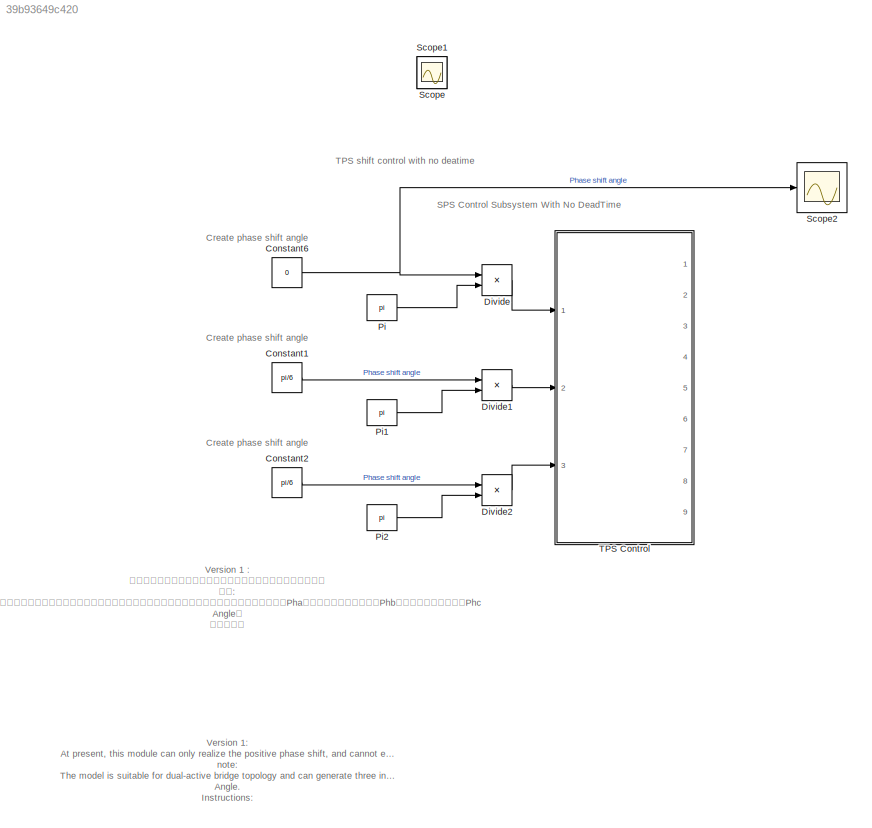
MODEL slx_39b93649c420
KIND model
CONFIG AbsTol = auto
CONFIG EnableMultiTasking = off
CONFIG FixedStep = auto
CONFIG MaxStep = 1e-9
CONFIG MinStep = auto
CONFIG RelTol = 1e-3
CONFIG SampleTimeConstraint = Unconstrained
CONFIG Solver = VariableStepAuto
CONFIG SolverName = VariableStepAuto
CONFIG StartTime = 0.0
CONFIG StopTime = 5/100000
BLOCK [Constant] Constant1
  Value = pi/6
BLOCK [Constant] Constant2
  Value = pi/6
BLOCK [Constant] Constant6
  Value = 0
BLOCK [Product] Divide
  InputSameDT = off
  Inputs = */
  OutDataTypeStr = Inherit: Inherit via internal rule
  Ports = [2, 1]
  RndMeth = Floor
  SaturateOnIntegerOverflow = off
BLOCK [Product] Divide1
  InputSameDT = off
  Inputs = */
  OutDataTypeStr = Inherit: Inherit via internal rule
  Ports = [2, 1]
  RndMeth = Floor
  SaturateOnIntegerOverflow = off
BLOCK [Product] Divide2
  InputSameDT = off
  Inputs = */
  OutDataTypeStr = Inherit: Inherit via internal rule
  Ports = [2, 1]
  RndMeth = Floor
  SaturateOnIntegerOverflow = off
BLOCK [Constant] Pi
  Value = pi
BLOCK [Constant] Pi1
  Value = pi
BLOCK [Constant] Pi2
  Value = pi
BLOCK [Scope] Scope
  IOType = viewer
  NumInputPorts = 1
  Ports = []
  ScopeSpecificationString = Simulink.scopes.TimeScopeBlockCfg('CurrentConfiguration', extmgr.ConfigurationSet(extmgr.Configuration('Core','General UI',true),extmgr.Configuration('Core','Source UI',true),extmgr.Configuration('Sources','WiredSimulink',true,'DataLoggingVariableName','ScopeData2'),extmgr.Configuration('Visuals','Time Domain',true,'SerializedDisplays',{struct('MinYLimReal','-1.00000','MaxYLimReal','1.00000','YLab...<+1394ch>
BLOCK [Scope] Scope1
  IOType = viewer
  NumInputPorts = 1
  Ports = []
  ScopeSpecificationString = Simulink.scopes.TimeScopeBlockCfg('CurrentConfiguration', extmgr.ConfigurationSet(extmgr.Configuration('Core','General UI',true),extmgr.Configuration('Core','Source UI',true),extmgr.Configuration('Sources','WiredSimulink',true,'DataLoggingVariableName','ScopeData3'),extmgr.Configuration('Visuals','Time Domain',true,'SerializedDisplays',{struct('MinYLimReal','-1.00000','MaxYLimReal','1.00000','YLab...<+1394ch>
BLOCK [Scope] Scope2
  NumInputPorts = 1
  Ports = [1]
  ScopeSpecificationString = Simulink.scopes.TimeScopeBlockCfg('CurrentConfiguration', extmgr.ConfigurationSet(extmgr.Configuration('Core','General UI',true),extmgr.Configuration('Core','Source UI',true),extmgr.Configuration('Sources','WiredSimulink',true,'DataLoggingVariableName','ScopeData1'),extmgr.Configuration('Visuals','Time Domain',true,'SerializedDisplays',{struct('MinYLimReal','50.00000','MaxYLimReal','70.00000','YLa...<+1506ch>
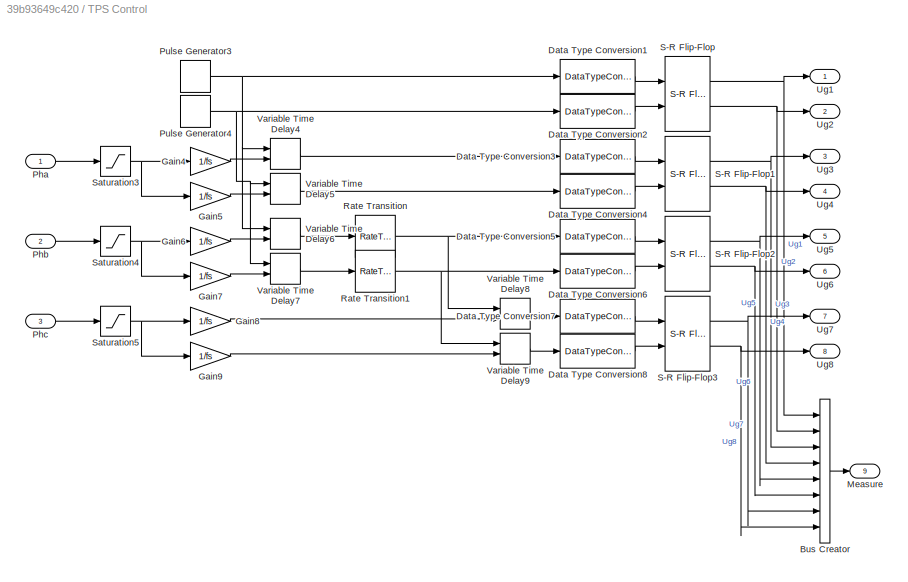
BLOCK [SubSystem] TPS Control
  Ports = [3, 9]
  RequestExecContextInheritance = off
  ShowPortLabels = FromPortBlockName
  Variant = off
BLOCK [BusCreator] TPS Control/Bus Creator
  DisplayOption = bar
  InheritFromInputs = on
  Inputs = 8
  Ports = [8, 1]
BLOCK [DataTypeConversion] TPS Control/Data Type Conversion1
  RndMeth = Floor
  SaturateOnIntegerOverflow = off
BLOCK [DataTypeConversion] TPS Control/Data Type Conversion2
  RndMeth = Floor
  SaturateOnIntegerOverflow = off
BLOCK [DataTypeConversion] TPS Control/Data Type Conversion3
  RndMeth = Floor
  SaturateOnIntegerOverflow = off
BLOCK [DataTypeConversion] TPS Control/Data Type Conversion4
  RndMeth = Floor
  SaturateOnIntegerOverflow = off
BLOCK [DataTypeConversion] TPS Control/Data Type Conversion5
  RndMeth = Floor
  SaturateOnIntegerOverflow = off
BLOCK [DataTypeConversion] TPS Control/Data Type Conversion6
  RndMeth = Floor
  SaturateOnIntegerOverflow = off
BLOCK [DataTypeConversion] TPS Control/Data Type Conversion7
  RndMeth = Floor
  SaturateOnIntegerOverflow = off
BLOCK [DataTypeConversion] TPS Control/Data Type Conversion8
  RndMeth = Floor
  SaturateOnIntegerOverflow = off
BLOCK [Gain] TPS Control/Gain4
  Gain = 1/fs
  OutDataTypeStr = Inherit: Inherit via internal rule
  ParamDataTypeStr = Inherit: Inherit via internal rule
  SaturateOnIntegerOverflow = off
BLOCK [Gain] TPS Control/Gain5
  Gain = 1/fs
  OutDataTypeStr = Inherit: Inherit via internal rule
  ParamDataTypeStr = Inherit: Inherit via internal rule
  SaturateOnIntegerOverflow = off
BLOCK [Gain] TPS Control/Gain6
  Gain = 1/fs
  OutDataTypeStr = Inherit: Inherit via internal rule
  ParamDataTypeStr = Inherit: Inherit via internal rule
  SaturateOnIntegerOverflow = off
BLOCK [Gain] TPS Control/Gain7
  Gain = 1/fs
  OutDataTypeStr = Inherit: Inherit via internal rule
  ParamDataTypeStr = Inherit: Inherit via internal rule
  SaturateOnIntegerOverflow = off
BLOCK [Gain] TPS Control/Gain8
  Gain = 1/fs
  OutDataTypeStr = Inherit: Inherit via internal rule
  ParamDataTypeStr = Inherit: Inherit via internal rule
  SaturateOnIntegerOverflow = off
BLOCK [Gain] TPS Control/Gain9
  Gain = 1/fs
  OutDataTypeStr = Inherit: Inherit via internal rule
  ParamDataTypeStr = Inherit: Inherit via internal rule
  SaturateOnIntegerOverflow = off
BLOCK [Outport] TPS Control/Measure
  IconDisplay = Port number
  Port = 9
BLOCK [Inport] TPS Control/Pha
  IconDisplay = Port number
BLOCK [Inport] TPS Control/Phb
  IconDisplay = Port number
  Port = 2
BLOCK [Inport] TPS Control/Phc
  IconDisplay = Port number
  Port = 3
BLOCK [DiscretePulseGenerator] TPS Control/Pulse Generator3
  Period = 1/(1*fs)
  Ports = [0, 1]
  PulseType = Time based
  PulseWidth = 50
  VectorParams1D = off
BLOCK [DiscretePulseGenerator] TPS Control/Pulse Generator4
  Period = 1/(1*fs)
  PhaseDelay = 0.5/fs
  Ports = [0, 1]
  PulseType = Time based
  PulseWidth = 50
  VectorParams1D = off
BLOCK [RateTransition] TPS Control/Rate Transition
BLOCK [RateTransition] TPS Control/Rate Transition1
BLOCK [Reference] TPS Control/S-R Flip-Flop  REF=simulink_extras/Flip Flops/S-R
Flip-Flop
  Ports = [2, 2]
  SourceBlock = simulink_extras/Flip Flops/S-R\nFlip-Flop
  SourceType = SRFlipFlop
BLOCK [Reference] TPS Control/S-R Flip-Flop1  REF=simulink_extras/Flip Flops/S-R
Flip-Flop
  Ports = [2, 2]
  SourceBlock = simulink_extras/Flip Flops/S-R\nFlip-Flop
  SourceType = SRFlipFlop
BLOCK [Reference] TPS Control/S-R Flip-Flop2  REF=simulink_extras/Flip Flops/S-R
Flip-Flop
  Ports = [2, 2]
  SourceBlock = simulink_extras/Flip Flops/S-R\nFlip-Flop
  SourceType = SRFlipFlop
BLOCK [Reference] TPS Control/S-R Flip-Flop3  REF=simulink_extras/Flip Flops/S-R
Flip-Flop
  Ports = [2, 2]
  SourceBlock = simulink_extras/Flip Flops/S-R\nFlip-Flop
  SourceType = SRFlipFlop
BLOCK [Saturate] TPS Control/Saturation3
  InputPortMap = u0
  LowerLimit = 0
  Ports = [1, 1]
BLOCK [Saturate] TPS Control/Saturation4
  InputPortMap = u0
  LowerLimit = 0
  Ports = [1, 1]
BLOCK [Saturate] TPS Control/Saturation5
  InputPortMap = u0
  LowerLimit = 0
  Ports = [1, 1]
  UpperLimit = 1
BLOCK [Outport] TPS Control/Ug1
  IconDisplay = Port number
BLOCK [Outport] TPS Control/Ug2
  IconDisplay = Port number
  Port = 2
BLOCK [Outport] TPS Control/Ug3
  IconDisplay = Port number
  Port = 3
BLOCK [Outport] TPS Control/Ug4
  IconDisplay = Port number
  Port = 4
BLOCK [Outport] TPS Control/Ug5
  IconDisplay = Port number
  Port = 5
BLOCK [Outport] TPS Control/Ug6
  IconDisplay = Port number
  Port = 6
BLOCK [Outport] TPS Control/Ug7
  IconDisplay = Port number
  Port = 7
BLOCK [Outport] TPS Control/Ug8
  IconDisplay = Port number
  Port = 8
BLOCK [VariableTransportDelay] TPS Control/Variable Time Delay4
  MaximumDelay = 10
  Ports = [2, 1]
  ZeroDelay = on
BLOCK [VariableTransportDelay] TPS Control/Variable Time Delay5
  MaximumDelay = 10
  Ports = [2, 1]
  ZeroDelay = on
BLOCK [VariableTransportDelay] TPS Control/Variable Time Delay6
  MaximumDelay = 10
  Ports = [2, 1]
  ZeroDelay = on
BLOCK [VariableTransportDelay] TPS Control/Variable Time Delay7
  MaximumDelay = 10
  Ports = [2, 1]
  ZeroDelay = on
BLOCK [VariableTransportDelay] TPS Control/Variable Time Delay8
  MaximumDelay = 10
  Ports = [2, 1]
  ZeroDelay = on
BLOCK [VariableTransportDelay] TPS Control/Variable Time Delay9
  MaximumDelay = 10
  Ports = [2, 1]
  ZeroDelay = on
ANNOTATION (root): Version 1 : 目前该模块仅能实现正向的移相，无法有效的进行双向的移相。 注意: 该模型适用于双有源桥类拓扑结构，可以产生三个独立的产生三个移相角。分别是前侧桥臂桥内移相角Pha，前后侧桥臂桥间移相角Phb和后侧桥臂桥内移相角Phc Angle。 使用方法： 双击TPS Control模块，用户根据自己需要修改PWM频率，即修改fs的数值，单位是Hz。 前端的Create Phase shift angle模块用于生成移相角，用户可以根据需要进行自定义。 注意： 桥内移相角Pha的移相角变化范围为0-90°，桥间移相角Phb的移相角变化范围是0-90°，桥内移相角Phc的移相角变化范围是0-90°
ANNOTATION (root): Version 1: At present, this module can only realize the positive phase shift, and cannot effectively carry out the bidirectional phase shift. note: The model is suitable for dual-active bridge topology and can generate three independent phase shift angles. These are the phase shift angle Pha in the front side arm bridge, the phase shift angle Phb between the front and rear side arm bridges, and th...<+610ch>
ANNOTATION (root): Create phase shift angle
ANNOTATION (root): SPS Control Subsystem With No DeadTime
ANNOTATION (root): TPS shift control with no deatime
LINE Constant1:1 -> Divide1:1
LINE Constant2:1 -> Divide2:1
NET Constant6:1 -> Divide:1, Scope2:1
LINE Divide1:1 -> TPS Control:2
LINE Divide2:1 -> TPS Control:3
LINE Divide:1 -> TPS Control:1
LINE Pi1:1 -> Divide1:2
LINE Pi2:1 -> Divide2:2
LINE Pi:1 -> Divide:2
LINE TPS Control/Bus Creator:1 -> TPS Control/Measure:1
LINE TPS Control/Data Type Conversion1:1 -> TPS Control/S-R Flip-Flop:1
LINE TPS Control/Data Type Conversion2:1 -> TPS Control/S-R Flip-Flop:2
LINE TPS Control/Data Type Conversion3:1 -> TPS Control/S-R Flip-Flop1:1
LINE TPS Control/Data Type Conversion4:1 -> TPS Control/S-R Flip-Flop1:2
LINE TPS Control/Data Type Conversion5:1 -> TPS Control/S-R Flip-Flop2:1
LINE TPS Control/Data Type Conversion6:1 -> TPS Control/S-R Flip-Flop2:2
LINE TPS Control/Data Type Conversion7:1 -> TPS Control/S-R Flip-Flop3:1
LINE TPS Control/Data Type Conversion8:1 -> TPS Control/S-R Flip-Flop3:2
LINE TPS Control/Gain4:1 -> TPS Control/Variable Time Delay4:2
LINE TPS Control/Gain5:1 -> TPS Control/Variable Time Delay5:2
LINE TPS Control/Gain6:1 -> TPS Control/Variable Time Delay6:2
LINE TPS Control/Gain7:1 -> TPS Control/Variable Time Delay7:2
LINE TPS Control/Gain8:1 -> TPS Control/Variable Time Delay8:2
LINE TPS Control/Gain9:1 -> TPS Control/Variable Time Delay9:2
LINE TPS Control/Pha:1 -> TPS Control/Saturation3:1
LINE TPS Control/Phb:1 -> TPS Control/Saturation4:1
LINE TPS Control/Phc:1 -> TPS Control/Saturation5:1
NET TPS Control/Pulse Generator3:1 -> TPS Control/Data Type Conversion1:1, TPS Control/Variable Time Delay4:1, TPS Control/Variable Time Delay6:1
NET TPS Control/Pulse Generator4:1 -> TPS Control/Data Type Conversion2:1, TPS Control/Variable Time Delay5:1, TPS Control/Variable Time Delay7:1
NET TPS Control/Rate Transition1:1 -> TPS Control/Data Type Conversion6:1, TPS Control/Variable Time Delay9:1
NET TPS Control/Rate Transition:1 -> TPS Control/Data Type Conversion5:1, TPS Control/Variable Time Delay8:1
NET TPS Control/S-R Flip-Flop1:1 -> TPS Control/Bus Creator:3, TPS Control/Ug3:1
NET TPS Control/S-R Flip-Flop1:2 -> TPS Control/Bus Creator:4, TPS Control/Ug4:1
NET TPS Control/S-R Flip-Flop2:1 -> TPS Control/Bus Creator:5, TPS Control/Ug5:1
NET TPS Control/S-R Flip-Flop2:2 -> TPS Control/Bus Creator:6, TPS Control/Ug6:1
NET TPS Control/S-R Flip-Flop3:1 -> TPS Control/Bus Creator:7, TPS Control/Ug7:1
NET TPS Control/S-R Flip-Flop3:2 -> TPS Control/Bus Creator:8, TPS Control/Ug8:1
NET TPS Control/S-R Flip-Flop:1 -> TPS Control/Bus Creator:1, TPS Control/Ug1:1
NET TPS Control/S-R Flip-Flop:2 -> TPS Control/Bus Creator:2, TPS Control/Ug2:1
NET TPS Control/Saturation3:1 -> TPS Control/Gain4:1, TPS Control/Gain5:1
NET TPS Control/Saturation4:1 -> TPS Control/Gain6:1, TPS Control/Gain7:1
NET TPS Control/Saturation5:1 -> TPS Control/Gain8:1, TPS Control/Gain9:1
LINE TPS Control/Variable Time Delay4:1 -> TPS Control/Data Type Conversion3:1
LINE TPS Control/Variable Time Delay5:1 -> TPS Control/Data Type Conversion4:1
LINE TPS Control/Variable Time Delay6:1 -> TPS Control/Rate Transition:1
LINE TPS Control/Variable Time Delay7:1 -> TPS Control/Rate Transition1:1
LINE TPS Control/Variable Time Delay8:1 -> TPS Control/Data Type Conversion7:1
LINE TPS Control/Variable Time Delay9:1 -> TPS Control/Data Type Conversion8:1
note: NET lines group one-source signal fan-out (src -> all destinations, sorted); 1:1 wires keep LINE
